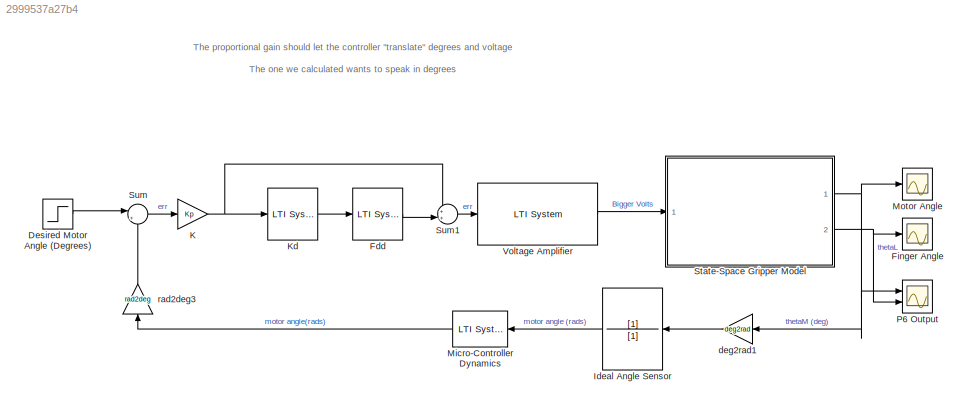
MODEL slx_2999537a27b4
KIND model
CONFIG AbsTol = auto
CONFIG EnableMultiTasking = off
CONFIG FixedStep = auto
CONFIG MaxStep = auto
CONFIG MinStep = auto
CONFIG RelTol = 1e-3
CONFIG SampleTimeConstraint = Unconstrained
CONFIG SolverName = VariableStepAuto
CONFIG StartTime = 0.0
CONFIG StopTime = 2
BLOCK [Step] Desired Motor Angle (Degrees)
  After = 10
  SampleTime = 0
  Time = 0
BLOCK [Reference] Fdd  REF=cstblocks/LTI System
  Commented = on
  Ports = [1, 1]
  SourceBlock = cstblocks/LTI System
  SourceProductBaseCode = CT
  SourceType = LTI Block
BLOCK [Scope] Finger Angle
  Floating = off
  NumInputPorts = 1
  Ports = [1]
  ScopeSpecificationString = Simulink.scopes.TimeScopeBlockCfg('CurrentConfiguration', extmgr.ConfigurationSet(extmgr.Configuration('Core','General UI',true),extmgr.Configuration('Core','Source UI',true),extmgr.Configuration('Sources','WiredSimulink',true,'DataLoggingVariableName','ScopeData1'),extmgr.Configuration('Visuals','Time Domain',true,'SerializedDisplays',{struct('MinYLimReal','-1.59395','MaxYLimReal','14.34554','YLa...<+1369ch>
BLOCK [TransferFcn] Ideal Angle Sensor
  Denominator = [1]
BLOCK [Gain] K
  Gain = Kp
BLOCK [Reference] Kd  REF=cstblocks/LTI System
  Commented = on
  Ports = [1, 1]
  SourceBlock = cstblocks/LTI System
  SourceProductBaseCode = CT
  SourceType = LTI Block
BLOCK [Reference] Micro-Controller Dynamics  REF=cstblocks/LTI System
  NameLocation = top
  Ports = [1, 1]
  SourceBlock = cstblocks/LTI System
  SourceProductBaseCode = CT
  SourceType = LTI Block
BLOCK [Scope] Motor Angle
  Floating = off
  NumInputPorts = 1
  Ports = [1]
  ScopeSpecificationString = Simulink.scopes.TimeScopeBlockCfg('CurrentConfiguration', extmgr.ConfigurationSet(extmgr.Configuration('Core','General UI',true),extmgr.Configuration('Core','Source UI',true),extmgr.Configuration('Sources','WiredSimulink',true),extmgr.Configuration('Visuals','Time Domain',true,'SerializedDisplays',{struct('MinYLimReal','-0.89879','MaxYLimReal','8.08913','YLabelReal','','MinYLimMag','0.00000','MaxY...<+1448ch>
BLOCK [Scope] P6 Output
  Floating = off
  NumInputPorts = 2
  Ports = [2]
  ScopeSpecificationString = Simulink.scopes.TimeScopeBlockCfg('CurrentConfiguration', extmgr.ConfigurationSet(extmgr.Configuration('Core','General UI',true),extmgr.Configuration('Core','Source UI',true),extmgr.Configuration('Sources','WiredSimulink',true,'DataLoggingVariableName','ScopeData3'),extmgr.Configuration('Visuals','Time Domain',true,'SerializedDisplays',{struct('MinYLimReal','-0.24101','MaxYLimReal','2.16911','YLab...<+1623ch>
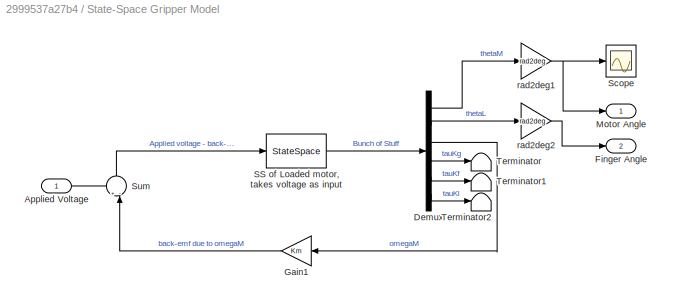
BLOCK [SubSystem] State-Space Gripper Model
  Ports = [1, 2]
  RequestExecContextInheritance = off
BLOCK [Outport] State-Space Gripper Model/ Finger Angle 
  NameLocation = top
  Port = 2
BLOCK [Outport] State-Space Gripper Model/ Motor Angle 
  NameLocation = top
BLOCK [Inport] State-Space Gripper Model/Applied Voltage
BLOCK [Demux] State-Space Gripper Model/Demux
  Outputs = 6
  Ports = [1, 6]
BLOCK [Gain] State-Space Gripper Model/Gain1
  Gain = Km
  NameLocation = top
BLOCK [StateSpace] State-Space Gripper Model/SS of Loaded motor, takes voltage as input
  A = P5_A2
  B = P5_B2
  C = P5_C2
  D = P5_D2
  InitialCondition = 0
  ParameterTunability = Unconstrained
  Ports = [1, 1]
BLOCK [Scope] State-Space Gripper Model/Scope
  Floating = off
  NumInputPorts = 1
  Ports = [1]
  ScopeSpecificationString = Simulink.scopes.TimeScopeBlockCfg('CurrentConfiguration', extmgr.ConfigurationSet(extmgr.Configuration('Core','General UI',true),extmgr.Configuration('Core','Source UI',true),extmgr.Configuration('Sources','WiredSimulink',true,'DataLoggingVariableName','ScopeData2'),extmgr.Configuration('Visuals','Time Domain',true,'SerializedDisplays',{struct('MinYLimReal','0.1013','MaxYLimReal','0.12746','YLabel...<+1380ch>
BLOCK [Sum] State-Space Gripper Model/Sum
  Inputs = +-|
  NameLocation = right
  Ports = [2, 1]
BLOCK [Terminator] State-Space Gripper Model/Terminator
BLOCK [Terminator] State-Space Gripper Model/Terminator1
BLOCK [Terminator] State-Space Gripper Model/Terminator2
BLOCK [Gain] State-Space Gripper Model/rad2deg1
  Gain = rad2deg
BLOCK [Gain] State-Space Gripper Model/rad2deg2
  Gain = rad2deg
BLOCK [Sum] Sum
  Inputs = |+-
  Ports = [2, 1]
BLOCK [Sum] Sum1
  Inputs = ++|
  Ports = [2, 1]
BLOCK [Reference] Voltage Amplifier  REF=cstblocks/LTI System
  Ports = [1, 1]
  SourceBlock = cstblocks/LTI System
  SourceProductBaseCode = CT
  SourceType = LTI Block
BLOCK [Gain] deg2rad1
  Gain = deg2rad
  NameLocation = top
BLOCK [Gain] rad2deg3
  Gain = rad2deg
  NameLocation = right
ANNOTATION (root): The proportional gain should let the controller "translate" degrees and voltage The one we calculated wants to speak in degrees
LINE Desired Motor Angle (Degrees):1 -> Sum:1
LINE Fdd:1 -> Sum1:2
LINE Ideal Angle Sensor:1 -> Micro-Controller Dynamics:1
NET K:1 -> Kd:1, Sum1:1
LINE Kd:1 -> Fdd:1
LINE Micro-Controller Dynamics:1 -> rad2deg3:1
LINE State-Space Gripper Model/Applied Voltage:1 -> State-Space Gripper Model/Sum:1
LINE State-Space Gripper Model/Demux:1 -> State-Space Gripper Model/rad2deg1:1
LINE State-Space Gripper Model/Demux:2 -> State-Space Gripper Model/rad2deg2:1
LINE State-Space Gripper Model/Demux:3 -> State-Space Gripper Model/Gain1:1
LINE State-Space Gripper Model/Demux:4 -> State-Space Gripper Model/Terminator:1
LINE State-Space Gripper Model/Demux:5 -> State-Space Gripper Model/Terminator1:1
LINE State-Space Gripper Model/Demux:6 -> State-Space Gripper Model/Terminator2:1
LINE State-Space Gripper Model/Gain1:1 -> State-Space Gripper Model/Sum:2
LINE State-Space Gripper Model/SS of Loaded motor, takes voltage as input:1 -> State-Space Gripper Model/Demux:1
LINE State-Space Gripper Model/Sum:1 -> State-Space Gripper Model/SS of Loaded motor, takes voltage as input:1
NET State-Space Gripper Model/rad2deg1:1 -> State-Space Gripper Model/ Motor Angle :1, State-Space Gripper Model/Scope:1
LINE State-Space Gripper Model/rad2deg2:1 -> State-Space Gripper Model/ Finger Angle :1
NET State-Space Gripper Model:1 -> Motor Angle:1, P6 Output:1, deg2rad1:1
NET State-Space Gripper Model:2 -> Finger Angle:1, P6 Output:2
LINE Sum1:1 -> Voltage Amplifier:1
LINE Sum:1 -> K:1
LINE Voltage Amplifier:1 -> State-Space Gripper Model:1
LINE deg2rad1:1 -> Ideal Angle Sensor:1
LINE rad2deg3:1 -> Sum:2
note: NET lines group one-source signal fan-out (src -> all destinations, sorted); 1:1 wires keep LINE
